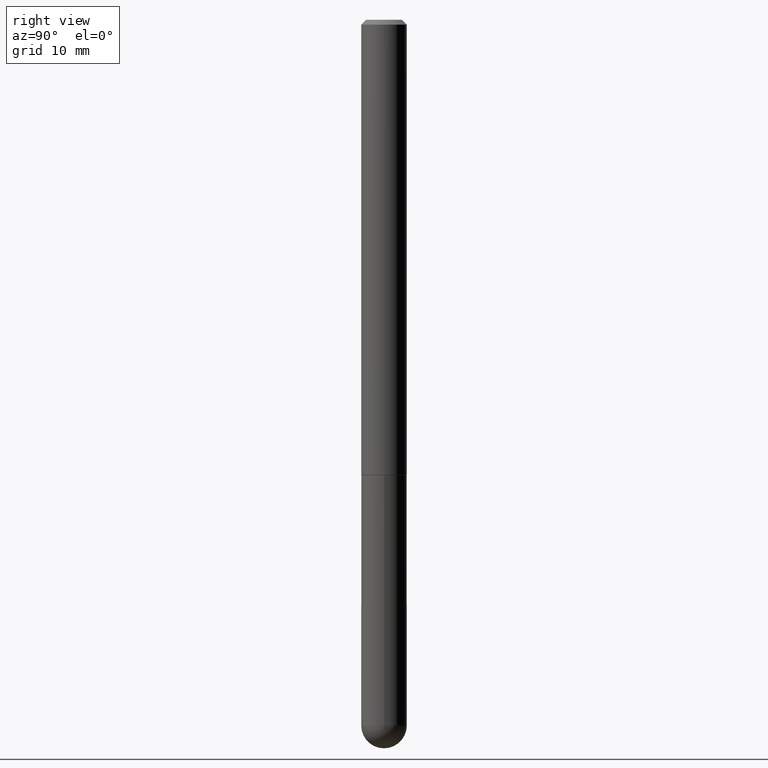
[diagram: clean part render]
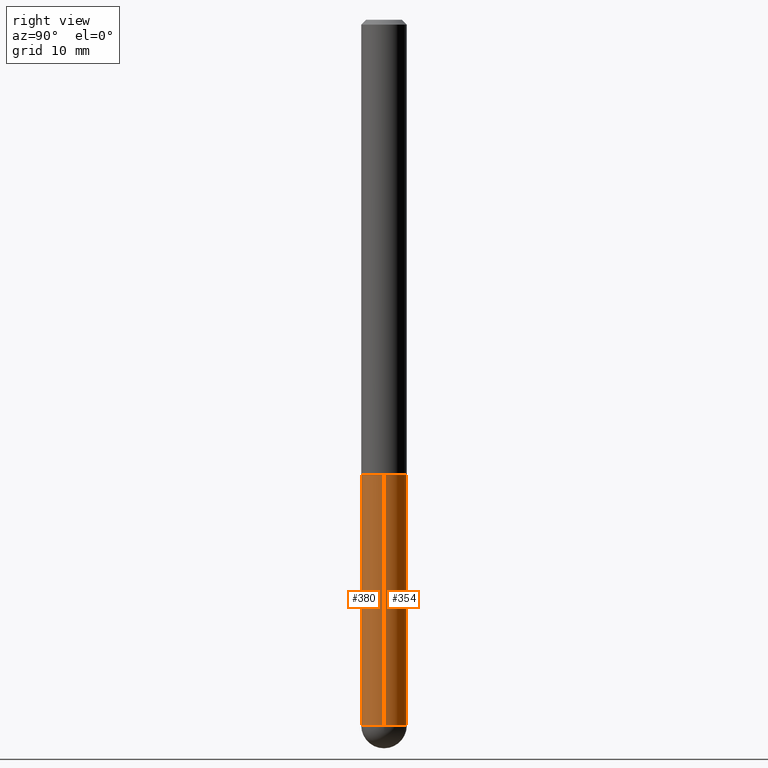
[diagram: same view with one multi-face feature highlighted, each face labeled with its STEP entity id]
A machine part, right view. The highlighted faces form ONE feature: a constant-radius fillet chain: 2 tangent blend faces with common blend radius 2.3813 mm. The faces share edges in the B-rep.
Their STEP definitions:
[1] entity #380 (Cylinder):
#12 = VERTEX_POINT ( 'NONE', #403 ) ;
#32 = DIRECTION ( 'NONE',  ( 1.000000000000000000, -6.982962677686263555E-15, 0.000000000000000000 ) ) ;
#33 = ORIENTED_EDGE ( 'NONE', *, *, #106, .T. ) ;
#37 = CARTESIAN_POINT ( 'NONE',  ( 0.09375000000000005551, -9.001475326704983750E-15, -2.906250000000000000 ) ) ;
#47 = CARTESIAN_POINT ( 'NONE',  ( -0.09375000000000005551, -7.680688760896801533E-15, -2.906250000000000000 ) ) ;
#54 = VERTEX_POINT ( 'NONE', #37 ) ;
#57 = DIRECTION ( 'NONE',  ( 1.000000000000000000, -6.982962677686258033E-15, 0.000000000000000000 ) ) ;
#59 = AXIS2_PLACEMENT_3D ( 'NONE', #279, #342, #57 ) ;
#66 = VERTEX_POINT ( 'NONE', #388 ) ;
#71 = EDGE_CURVE ( 'NONE', #144, #66, #318, .T. ) ;
#72 = DIRECTION ( 'NONE',  ( 1.000000000000000000, -6.982962677686258033E-15, 0.000000000000000000 ) ) ;
#73 = DIRECTION ( 'NONE',  ( -2.445468806185136597E-29, 3.491481338843145583E-15, 1.000000000000000000 ) ) ;
#80 = DIRECTION ( 'NONE',  ( -2.445468806185136597E-29, 3.491481338843145583E-15, 1.000000000000000000 ) ) ;
#82 = DIRECTION ( 'NONE',  ( 1.000000000000000000, -6.982962677686265922E-15, 4.876176775795935793E-29 ) ) ;
#87 = CYLINDRICAL_SURFACE ( 'NONE', #353, 0.09375000000000002776 ) ;
#89 = EDGE_CURVE ( 'NONE', #66, #12, #130, .T. ) ;
#105 = CARTESIAN_POINT ( 'NONE',  ( 7.107143717975553234E-29, -1.014711764101289221E-14, -2.906250000000000000 ) ) ;
#106 = EDGE_CURVE ( 'NONE', #112, #54, #301, .T. ) ;
#112 = VERTEX_POINT ( 'NONE', #236 ) ;
#117 = AXIS2_PLACEMENT_3D ( 'NONE', #105, #73, #72 ) ;
#120 = CARTESIAN_POINT ( 'NONE',  ( 0.000000000000000000, 0.000000000000000000, 0.000000000000000000 ) ) ;
#123 = VECTOR ( 'NONE', #389, 39.37007874015748143 ) ;
#130 = CIRCLE ( 'NONE', #140, 0.09374999999999998612 ) ;
#135 = VECTOR ( 'NONE', #281, 39.37007874015748143 ) ;
#140 = AXIS2_PLACEMENT_3D ( 'NONE', #215, #351, #32 ) ;
#144 = VERTEX_POINT ( 'NONE', #47 ) ;
#150 = CARTESIAN_POINT ( 'NONE',  ( 0.09375000000000002776, -6.546527510330876027E-16, 4.571415727308691207E-30 ) ) ;
#172 = ORIENTED_EDGE ( 'NONE', *, *, #407, .T. ) ;
#181 = FACE_OUTER_BOUND ( 'NONE', #396, .T. ) ;
#182 = CIRCLE ( 'NONE', #59, 0.09375000000000005551 ) ;
#215 = CARTESIAN_POINT ( 'NONE',  ( 4.585254011597131119E-29, -6.546527510330898707E-15, -1.875000000000000000 ) ) ;
#236 = CARTESIAN_POINT ( 'NONE',  ( -6.661338147750256878E-16, -0.09375000000001056100, -2.906249999999999556 ) ) ;
#246 = ORIENTED_EDGE ( 'NONE', *, *, #89, .F. ) ;
#260 = CARTESIAN_POINT ( 'NONE',  ( -0.09375000000000002776, 6.661338147750941215E-16, -4.611501647113975397E-30 ) ) ;
#269 = ORIENTED_EDGE ( 'NONE', *, *, #311, .T. ) ;
#279 = CARTESIAN_POINT ( 'NONE',  ( 7.107143717975553234E-29, -1.014711764101289221E-14, -2.906250000000000000 ) ) ;
#281 = DIRECTION ( 'NONE',  ( -2.445468806185136877E-29, 3.491481338843145188E-15, 1.000000000000000000 ) ) ;
#301 = CIRCLE ( 'NONE', #117, 0.09375000000000005551 ) ;
#304 = ORIENTED_EDGE ( 'NONE', *, *, #71, .F. ) ;
#311 = EDGE_CURVE ( 'NONE', #144, #112, #182, .T. ) ;
#318 = LINE ( 'NONE', #260, #123 ) ;
#342 = DIRECTION ( 'NONE',  ( -2.445468806185136597E-29, 3.491481338843145583E-15, 1.000000000000000000 ) ) ;
#351 = DIRECTION ( 'NONE',  ( -2.445468806185136597E-29, 3.491481338843145583E-15, 1.000000000000000000 ) ) ;
#353 = AXIS2_PLACEMENT_3D ( 'NONE', #120, #80, #82 ) ;
#380 = ADVANCED_FACE ( 'NONE', ( #181 ), #87, .T. ) ;
#388 = CARTESIAN_POINT ( 'NONE',  ( -0.09374999999999998612, -7.680688760896801533E-15, -1.875000000000000000 ) ) ;
#389 = DIRECTION ( 'NONE',  ( -2.445468806185136877E-29, 3.491481338843145188E-15, 1.000000000000000000 ) ) ;
#396 = EDGE_LOOP ( 'NONE', ( #304, #269, #33, #172, #246 ) ) ;
#402 = LINE ( 'NONE', #150, #135 ) ;
#403 = CARTESIAN_POINT ( 'NONE',  ( 0.09374999999999998612, -7.201180261363985422E-15, -1.875000000000000000 ) ) ;
#407 = EDGE_CURVE ( 'NONE', #54, #12, #402, .T. ) ;
[2] entity #354 (Cylinder):
#7 = AXIS2_PLACEMENT_3D ( 'NONE', #145, #344, #118 ) ;
#12 = VERTEX_POINT ( 'NONE', #403 ) ;
#15 = ORIENTED_EDGE ( 'NONE', *, *, #407, .F. ) ;
#18 = EDGE_CURVE ( 'NONE', #12, #66, #45, .T. ) ;
#37 = CARTESIAN_POINT ( 'NONE',  ( 0.09375000000000005551, -9.001475326704983750E-15, -2.906250000000000000 ) ) ;
#44 = EDGE_LOOP ( 'NONE', ( #209, #345, #399, #15, #231 ) ) ;
#45 = CIRCLE ( 'NONE', #392, 0.09374999999999998612 ) ;
#47 = CARTESIAN_POINT ( 'NONE',  ( -0.09375000000000005551, -7.680688760896801533E-15, -2.906250000000000000 ) ) ;
#50 = DIRECTION ( 'NONE',  ( -2.445468806185136597E-29, 3.491481338843145583E-15, 1.000000000000000000 ) ) ;
#54 = VERTEX_POINT ( 'NONE', #37 ) ;
#66 = VERTEX_POINT ( 'NONE', #388 ) ;
#71 = EDGE_CURVE ( 'NONE', #144, #66, #318, .T. ) ;
#76 = DIRECTION ( 'NONE',  ( 1.000000000000000000, -6.982962677686258033E-15, 0.000000000000000000 ) ) ;
#77 = VERTEX_POINT ( 'NONE', #254 ) ;
#104 = CIRCLE ( 'NONE', #7, 0.09375000000000005551 ) ;
#116 = DIRECTION ( 'NONE',  ( 1.000000000000000000, -6.982962677686263555E-15, 0.000000000000000000 ) ) ;
#118 = DIRECTION ( 'NONE',  ( 1.000000000000000000, -6.982962677686258033E-15, 0.000000000000000000 ) ) ;
#123 = VECTOR ( 'NONE', #389, 39.37007874015748143 ) ;
#128 = CARTESIAN_POINT ( 'NONE',  ( 4.585254011597131119E-29, -6.546527510330898707E-15, -1.875000000000000000 ) ) ;
#135 = VECTOR ( 'NONE', #281, 39.37007874015748143 ) ;
#144 = VERTEX_POINT ( 'NONE', #47 ) ;
#145 = CARTESIAN_POINT ( 'NONE',  ( 7.107143717975553234E-29, -1.014711764101289221E-14, -2.906250000000000000 ) ) ;
#150 = CARTESIAN_POINT ( 'NONE',  ( 0.09375000000000002776, -6.546527510330876027E-16, 4.571415727308691207E-30 ) ) ;
#190 = AXIS2_PLACEMENT_3D ( 'NONE', #244, #50, #404 ) ;
#192 = EDGE_CURVE ( 'NONE', #77, #144, #368, .T. ) ;
#209 = ORIENTED_EDGE ( 'NONE', *, *, #192, .T. ) ;
#223 = DIRECTION ( 'NONE',  ( -2.445468806185136597E-29, 3.491481338843145583E-15, 1.000000000000000000 ) ) ;
#231 = ORIENTED_EDGE ( 'NONE', *, *, #357, .T. ) ;
#244 = CARTESIAN_POINT ( 'NONE',  ( 0.000000000000000000, 0.000000000000000000, 0.000000000000000000 ) ) ;
#254 = CARTESIAN_POINT ( 'NONE',  ( 6.546527510331581072E-16, 0.09374999999998979983, -2.906250000000000888 ) ) ;
#260 = CARTESIAN_POINT ( 'NONE',  ( -0.09375000000000002776, 6.661338147750941215E-16, -4.611501647113975397E-30 ) ) ;
#263 = CARTESIAN_POINT ( 'NONE',  ( 7.107143717975553234E-29, -1.014711764101289221E-14, -2.906250000000000000 ) ) ;
#275 = CYLINDRICAL_SURFACE ( 'NONE', #190, 0.09375000000000002776 ) ;
#281 = DIRECTION ( 'NONE',  ( -2.445468806185136877E-29, 3.491481338843145188E-15, 1.000000000000000000 ) ) ;
#305 = DIRECTION ( 'NONE',  ( -2.445468806185136597E-29, 3.491481338843145583E-15, 1.000000000000000000 ) ) ;
#318 = LINE ( 'NONE', #260, #123 ) ;
#337 = FACE_OUTER_BOUND ( 'NONE', #44, .T. ) ;
#344 = DIRECTION ( 'NONE',  ( -2.445468806185136597E-29, 3.491481338843145583E-15, 1.000000000000000000 ) ) ;
#345 = ORIENTED_EDGE ( 'NONE', *, *, #71, .T. ) ;
#354 = ADVANCED_FACE ( 'NONE', ( #337 ), #275, .T. ) ;
#357 = EDGE_CURVE ( 'NONE', #54, #77, #104, .T. ) ;
#361 = AXIS2_PLACEMENT_3D ( 'NONE', #263, #305, #76 ) ;
#368 = CIRCLE ( 'NONE', #361, 0.09375000000000005551 ) ;
#388 = CARTESIAN_POINT ( 'NONE',  ( -0.09374999999999998612, -7.680688760896801533E-15, -1.875000000000000000 ) ) ;
#389 = DIRECTION ( 'NONE',  ( -2.445468806185136877E-29, 3.491481338843145188E-15, 1.000000000000000000 ) ) ;
#392 = AXIS2_PLACEMENT_3D ( 'NONE', #128, #223, #116 ) ;
#399 = ORIENTED_EDGE ( 'NONE', *, *, #18, .F. ) ;
#402 = LINE ( 'NONE', #150, #135 ) ;
#403 = CARTESIAN_POINT ( 'NONE',  ( 0.09374999999999998612, -7.201180261363985422E-15, -1.875000000000000000 ) ) ;
#404 = DIRECTION ( 'NONE',  ( 1.000000000000000000, -6.982962677686265922E-15, 4.876176775795935793E-29 ) ) ;
#407 = EDGE_CURVE ( 'NONE', #54, #12, #402, .T. ) ;